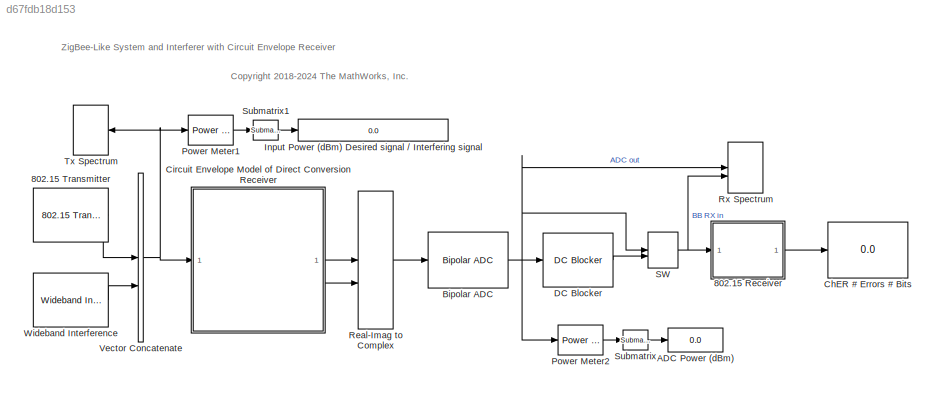
MODEL slx_d67fdb18d153
KIND model
CONFIG AbsTol = auto
CONFIG EnableMultiTasking = on
CONFIG FixedStep = auto
CONFIG MaxStep = auto
CONFIG MinStep = auto
CONFIG PreLoadFcn = % Baseband parameters\nbitRate = 250e3;\nspf = 4;  % samples per frame\nbps = 4;  % bits per ZigBee symbol\nsps = 16;  % samples per OQPSK symbol\ncps = 32;  % chips per ZigBee symbol\nchipRate = bitRate * cps / bps;\n\n% RF parameters\ncarrierFreqs = [2.45 2.5]*1e9;  % Hz\nharmonicOrder = [1 3];\noversampling = 4;  % reduce RF simulation step size to simulate interferer
CONFIG RelTol = 1e-3
CONFIG SampleTimeConstraint = Unconstrained
CONFIG SolverName = VariableStepAuto
CONFIG StartTime = 0.0
CONFIG StopTime = inf
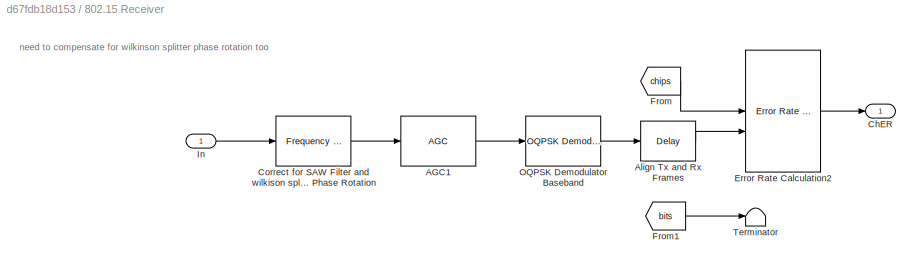
BLOCK [SubSystem] 802.15 Receiver
  NameLocation = top
BLOCK [Reference] 802.15 Receiver/AGC1  REF=commrfcorlib/AGC
  SourceBlock = commrfcorlib/AGC
  SourceType = AGC
BLOCK [Delay] 802.15 Receiver/Align Tx and Rx Frames
  DelayLength = cps - 1 - 1  % chips/sym - tx filter delay - rx filter delay
  InputPortMap = u0
  InputProcessing = Columns as channels (frame based)
BLOCK [Outport] 802.15 Receiver/ChER
  VectorParamsAs1DForOutWhenUnconnected = off
BLOCK [Reference] 802.15 Receiver/Correct for SAW Filter and wilkison splitter Phase Rotation  REF=commrflib2/Phase//
Frequency
Offset
  SourceBlock = commrflib2/Phase//\nFrequency\nOffset
  SourceType = Phase/Frequency Offset
BLOCK [Reference] 802.15 Receiver/Error Rate Calculation2  REF=commsink2/Error Rate
Calculation
  SourceBlock = commsink2/Error Rate\nCalculation
  SourceType = Error Rate Calculation
BLOCK [From] 802.15 Receiver/From
  GotoTag = chips
  TagVisibility = global
BLOCK [From] 802.15 Receiver/From1
  GotoTag = bits
  TagVisibility = global
BLOCK [Inport] 802.15 Receiver/In
BLOCK [Reference] 802.15 Receiver/OQPSK Demodulator Baseband  REF=commdigbbndpm3/OQPSK
Demodulator
Baseband
  SourceBlock = commdigbbndpm3/OQPSK\nDemodulator\nBaseband
  SourceType = OQPSK Demodulator Baseband
  UserDataPersistent = on
BLOCK [Terminator] 802.15 Receiver/Terminator
BLOCK [Reference] 802.15 Transmitter  REF=TopDownRFReceiverDesignLib/802.15
Transmitter
  SourceBlock = TopDownRFReceiverDesignLib/802.15\nTransmitter
BLOCK [Display] ADC Power (dBm)
  Decimation = 1
BLOCK [Reference] Bipolar ADC  REF=TopDownRFReceiverDesignLib/Bipolar ADC
  LibrarySourceBlock = commdemoslib/Bipolar ADC
  SourceBlock = TopDownRFReceiverDesignLib/Bipolar ADC
  SourceType = Analog-to-Digital Converter
BLOCK [Display] ChER # Errors # Bits
  Decimation = 1
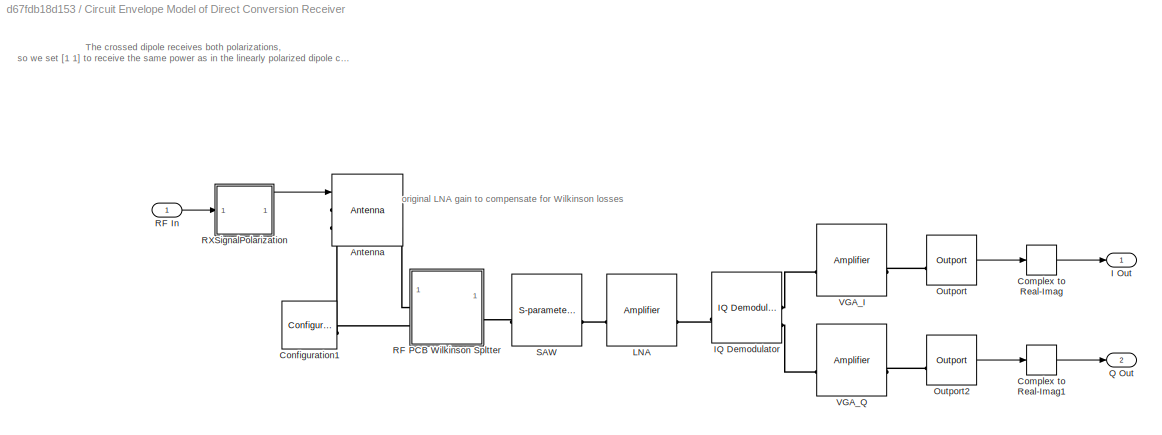
BLOCK [SubSystem] Circuit Envelope Model of Direct Conversion Receiver
BLOCK [Reference] Circuit Envelope Model of Direct Conversion Receiver/Antenna  REF=simrfV2elements/Antenna
  SourceBlock = simrfV2elements/Antenna
  SourceType = Antenna
  UserDataPersistent = on
BLOCK [ComplexToRealImag] Circuit Envelope Model of Direct Conversion Receiver/Complex to Real-Imag
  Output = Real
BLOCK [ComplexToRealImag] Circuit Envelope Model of Direct Conversion Receiver/Complex to Real-Imag1
  Output = Real
BLOCK [Reference] Circuit Envelope Model of Direct Conversion Receiver/Configuration1  REF=simrfV2util1/Configuration
  SourceBlock = simrfV2util1/Configuration
  SourceType = Configuration
BLOCK [Outport] Circuit Envelope Model of Direct Conversion Receiver/I Out
  NameLocation = top
  VectorParamsAs1DForOutWhenUnconnected = off
BLOCK [Reference] Circuit Envelope Model of Direct Conversion Receiver/IQ Demodulator   REF=simrfV2systems/IQ Demodulator
  SourceBlock = simrfV2systems/IQ Demodulator
  SourceType = IQ Demodulator
BLOCK [Reference] Circuit Envelope Model of Direct Conversion Receiver/LNA  REF=simrfV2elements/Amplifier
  SourceBlock = simrfV2elements/Amplifier
  SourceType = Amplifier
BLOCK [Reference] Circuit Envelope Model of Direct Conversion Receiver/Outport  REF=simrfV2util1/Outport
  SourceBlock = simrfV2util1/Outport
  SourceType = Outport
BLOCK [Reference] Circuit Envelope Model of Direct Conversion Receiver/Outport2  REF=simrfV2util1/Outport
  SourceBlock = simrfV2util1/Outport
  SourceType = Outport
BLOCK [Outport] Circuit Envelope Model of Direct Conversion Receiver/Q Out
  NameLocation = top
  Port = 2
  VectorParamsAs1DForOutWhenUnconnected = off
BLOCK [Inport] Circuit Envelope Model of Direct Conversion Receiver/RF In
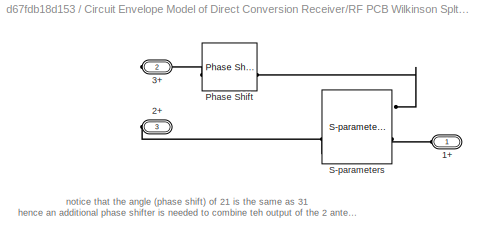
BLOCK [SubSystem] Circuit Envelope Model of Direct Conversion Receiver/RF PCB Wilkinson Spltter
BLOCK [PMIOPort] Circuit Envelope Model of Direct Conversion Receiver/RF PCB Wilkinson Spltter/1+
  Side = Left
BLOCK [PMIOPort] Circuit Envelope Model of Direct Conversion Receiver/RF PCB Wilkinson Spltter/2+
  Port = 3
  Side = Right
BLOCK [PMIOPort] Circuit Envelope Model of Direct Conversion Receiver/RF PCB Wilkinson Spltter/3+
  Port = 2
  Side = Right
BLOCK [Reference] Circuit Envelope Model of Direct Conversion Receiver/RF PCB Wilkinson Spltter/Phase Shift  REF=simrfV2elements/Phase Shift
  SourceBlock = simrfV2elements/Phase Shift
  SourceType = Phase Shift
BLOCK [Reference] Circuit Envelope Model of Direct Conversion Receiver/RF PCB Wilkinson Spltter/S-parameters  REF=simrfV2elements/S-parameters
  NameLocation = top
  SourceBlock = simrfV2elements/S-parameters
  SourceType = S-parameters
  UserDataPersistent = on
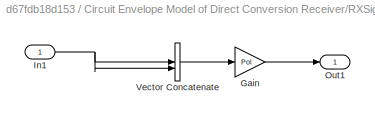
BLOCK [SubSystem] Circuit Envelope Model of Direct Conversion Receiver/RXSignalPolarization
BLOCK [Gain] Circuit Envelope Model of Direct Conversion Receiver/RXSignalPolarization/Gain
  Gain = Pol
BLOCK [Inport] Circuit Envelope Model of Direct Conversion Receiver/RXSignalPolarization/In1
BLOCK [Outport] Circuit Envelope Model of Direct Conversion Receiver/RXSignalPolarization/Out1
BLOCK [Concatenate] Circuit Envelope Model of Direct Conversion Receiver/RXSignalPolarization/Vector Concatenate
  ConcatenateDimension = 3
  Mode = Multidimensional array
  NameLocation = left
BLOCK [Reference] Circuit Envelope Model of Direct Conversion Receiver/SAW  REF=simrfV2elements/S-parameters
  SourceBlock = simrfV2elements/S-parameters
  SourceType = S-parameters
  UserDataPersistent = on
BLOCK [Reference] Circuit Envelope Model of Direct Conversion Receiver/VGA_I  REF=simrfV2elements/Amplifier
  SourceBlock = simrfV2elements/Amplifier
  SourceType = Amplifier
BLOCK [Reference] Circuit Envelope Model of Direct Conversion Receiver/VGA_Q  REF=simrfV2elements/Amplifier
  SourceBlock = simrfV2elements/Amplifier
  SourceType = Amplifier
BLOCK [Reference] DC Blocker  REF=dspsigops/DC Blocker
  SourceBlock = dspsigops/DC Blocker
  SourceType = dsp.simulink.DCBlocker
BLOCK [Display] Input Power (dBm) Desired signal // Interfering signal
  Decimation = 1
BLOCK [Reference] Power Meter1  REF=dspstat3/Power Meter
  LibrarySourceBlock = commutil2/Power Meter
  SourceBlock = dspstat3/Power Meter
  SourceType = dsp.simulink.PowerMeter
BLOCK [Reference] Power Meter2  REF=dspstat3/Power Meter
  LibrarySourceBlock = commutil2/Power Meter
  SourceBlock = dspstat3/Power Meter
  SourceType = dsp.simulink.PowerMeter
BLOCK [RealImagToComplex] Real-Imag to Complex
BLOCK [SpectrumAnalyzer] Rx Spectrum
  AllowFFTLengthLessThanSamplesPerUpdate = on
  AveragingMethod = Running
  AxesScaling = Manual
  FFTLength = 128
  FrequencyResolutionMethod = Window length
  GraphicalSettings = {"GraphicalSettings":{"Style":{"BackgroundColor":[0.12941176470588237,0.12941176470588237,0.12941176470588237],"AxesColor":[0,0,0],"LabelsColor":[0.6862745098039216,0.6862745098039216,0.6862745098039216],"PreserveColors":false,"Visible":[true,true],"LineStyle":["-","-"],"LineColor":[[1,1,0.06666666666666667],[0.07450980392156863,0.6235294117647059,1]],"LineWidth":[1,1],"Marker":["none","none"],"Fo...<+951ch>
  Method = Welch
  NameLocation = top
  NumInputPorts = 2
  RBW = 46921.92192
  RBWSource = Property
  SampleRate = 16000000
  ScopeFrameLocation = window
  ScopeSpecificationString = spbscopes.SpectrumAnalyzerBlockCfg('CurrentConfiguration', extmgr.ConfigurationSet(extmgr.Configuration('Core','General UI',true,'DisplayFullSourceName',true,'FigureColor',[0.156862745098039 0.156862745098039 0.156862745098039]),extmgr.Configuration('Core','Source UI',true),extmgr.Configuration('Sources','WiredSimulink',true),extmgr.Configuration('Sources','File',false),extmgr.Configuration('Sourc...<+4095ch>
  SegLen = 1024
  ShowLegend = on
  Span = 32000000
  SpectralAverages = 16
  StartFrequency = -16000000
  StopFrequency = 16000000
  WasSavedAsWebScope = on
  WindowPosition = [540.000000,122.000000,475.000000,318.000000,]
  YLabel = Power
  YLimits = [-75.64216798,-32.23249525]
BLOCK [ManualSwitch] SW
  CurrentSetting = 0
BLOCK [Reference] Submatrix  REF=matrix_library/Submatrix
  LibrarySourceBlock = simulink/Matrix\nOperations/Submatrix
  SourceBlock = matrix_library/Submatrix
  SourceType = Submatrix
BLOCK [Reference] Submatrix1  REF=matrix_library/Submatrix
  LibrarySourceBlock = simulink/Matrix\nOperations/Submatrix
  SourceBlock = matrix_library/Submatrix
  SourceType = Submatrix
BLOCK [SpectrumAnalyzer] Tx Spectrum
  AllowFFTLengthLessThanSamplesPerUpdate = on
  AveragingMethod = Running
  CenterFrequency = 2450000000
  FFTLength = 128
  FrequencyOffset = [2.45 2.5]*1e9
  FrequencyResolutionMethod = Window length
  GraphicalSettings = {"GraphicalSettings":{"Style":{"BackgroundColor":[0.12941176470588237,0.12941176470588237,0.12941176470588237],"AxesColor":[0,0,0],"LabelsColor":[0.6862745098039216,0.6862745098039216,0.6862745098039216],"PreserveColors":false,"Visible":[true,true],"LineStyle":["-","-"],"LineColor":[[1,1,0.06666666666666667],[0.07450980392156863,0.6235294117647059,1]],"LineWidth":[1,1],"Marker":["none","none"],"Fo...<+966ch>
  Method = Welch
  NameLocation = top
  RBW = 46921.92192
  RBWSource = Property
  SampleRate = 16000000
  ScopeFrameLocation = window
  ScopeSpecificationString = spbscopes.SpectrumAnalyzerBlockCfg('CurrentConfiguration', extmgr.ConfigurationSet(extmgr.Configuration('Core','General UI',true,'DisplayFullSourceName',true,'FigureColor',[0.156862745098039 0.156862745098039 0.156862745098039]),extmgr.Configuration('Core','Source UI',true),extmgr.Configuration('Sources','WiredSimulink',true),extmgr.Configuration('Sources','File',false),extmgr.Configuration('Sourc...<+3394ch>
  SegLen = 1024
  ShowLegend = on
  Span = 32000000
  SpectralAverages = 10
  StartFrequency = 2434000000
  StopFrequency = 2466000000
  WasSavedAsWebScope = on
  WindowPosition = [61.000000,124.000000,476.000000,318.000000,]
  YLabel = Power
  YLimits = [-211.9303413,-31.49754161]
BLOCK [Concatenate] Vector Concatenate
  ConcatenateDimension = 2
  Mode = Multidimensional array
BLOCK [Reference] Wideband Interference  REF=TopDownRFReceiverDesignLib/Wideband
Interference
  SourceBlock = TopDownRFReceiverDesignLib/Wideband\nInterference
ANNOTATION (root): ZigBee-Like System and Interferer with Circuit Envelope Receiver
ANNOTATION (root): <copyright redacted>
ANNOTATION 802.15 Receiver: need to compensate for wilkinson splitter phase rotation too
ANNOTATION Circuit Envelope Model of Direct Conversion Receiver: The crossed dipole receives both polarizations, so we set [1 1] to receive the same power as in the linearly polarized dipole case
ANNOTATION Circuit Envelope Model of Direct Conversion Receiver: original LNA gain to compensate for Wilkinson losses
ANNOTATION Circuit Envelope Model of Direct Conversion Receiver/RF PCB Wilkinson Spltter: notice that the angle (phase shift) of 21 is the same as 31 hence an additional phase shifter is needed to combine teh output of the 2 antennas
LINE 802.15 Receiver/AGC1:1 -> 802.15 Receiver/OQPSK Demodulator Baseband:1
LINE 802.15 Receiver/Align Tx and Rx Frames:1 -> 802.15 Receiver/Error Rate Calculation2:2
LINE 802.15 Receiver/Correct for SAW Filter and wilkison splitter Phase Rotation:1 -> 802.15 Receiver/AGC1:1
LINE 802.15 Receiver/Error Rate Calculation2:1 -> 802.15 Receiver/ChER:1
LINE 802.15 Receiver/From1:1 -> 802.15 Receiver/Terminator:1
LINE 802.15 Receiver/From:1 -> 802.15 Receiver/Error Rate Calculation2:1
LINE 802.15 Receiver/In:1 -> 802.15 Receiver/Correct for SAW Filter and wilkison splitter Phase Rotation:1
LINE 802.15 Receiver/OQPSK Demodulator Baseband:1 -> 802.15 Receiver/Align Tx and Rx Frames:1
LINE 802.15 Receiver:1 -> ChER # Errors # Bits:1
LINE 802.15 Transmitter:1 -> Vector Concatenate:1
NET Bipolar ADC:1 -> DC Blocker:1, Power Meter2:1, Rx Spectrum:1, SW:1
LINE Circuit Envelope Model of Direct Conversion Receiver/Complex to Real-Imag1:1 -> Circuit Envelope Model of Direct Conversion Receiver/Q Out:1
LINE Circuit Envelope Model of Direct Conversion Receiver/Complex to Real-Imag:1 -> Circuit Envelope Model of Direct Conversion Receiver/I Out:1
LINE Circuit Envelope Model of Direct Conversion Receiver/Outport2:1 -> Circuit Envelope Model of Direct Conversion Receiver/Complex to Real-Imag1:1
LINE Circuit Envelope Model of Direct Conversion Receiver/Outport:1 -> Circuit Envelope Model of Direct Conversion Receiver/Complex to Real-Imag:1
LINE Circuit Envelope Model of Direct Conversion Receiver/RF In:1 -> Circuit Envelope Model of Direct Conversion Receiver/RXSignalPolarization:1
LINE Circuit Envelope Model of Direct Conversion Receiver/RXSignalPolarization/Gain:1 -> Circuit Envelope Model of Direct Conversion Receiver/RXSignalPolarization/Out1:1
NET Circuit Envelope Model of Direct Conversion Receiver/RXSignalPolarization/In1:1 -> Circuit Envelope Model of Direct Conversion Receiver/RXSignalPolarization/Vector Concatenate:1, Circuit Envelope Model of Direct Conversion Receiver/RXSignalPolarization/Vector Concatenate:2
LINE Circuit Envelope Model of Direct Conversion Receiver/RXSignalPolarization/Vector Concatenate:1 -> Circuit Envelope Model of Direct Conversion Receiver/RXSignalPolarization/Gain:1
LINE Circuit Envelope Model of Direct Conversion Receiver/RXSignalPolarization:1 -> Circuit Envelope Model of Direct Conversion Receiver/Antenna:1
LINE Circuit Envelope Model of Direct Conversion Receiver:1 -> Real-Imag to Complex:1
LINE Circuit Envelope Model of Direct Conversion Receiver:2 -> Real-Imag to Complex:2
LINE DC Blocker:1 -> SW:2
LINE Power Meter1:1 -> Submatrix1:1
LINE Power Meter2:1 -> Submatrix:1
LINE Real-Imag to Complex:1 -> Bipolar ADC:1
NET SW:1 -> 802.15 Receiver:1, Rx Spectrum:2
LINE Submatrix1:1 -> Input Power (dBm) Desired signal // Interfering signal:1
LINE Submatrix:1 -> ADC Power (dBm):1
NET Vector Concatenate:1 -> Circuit Envelope Model of Direct Conversion Receiver:1, Power Meter1:1, Tx Spectrum:1
LINE Wideband Interference:1 -> Vector Concatenate:2
PNET net1: Circuit Envelope Model of Direct Conversion Receiver/Antenna:LConn1 -- Circuit Envelope Model of Direct Conversion Receiver/Configuration1:LConn1 -- Circuit Envelope Model of Direct Conversion Receiver/RF PCB Wilkinson Spltter:RConn2
PLINE Circuit Envelope Model of Direct Conversion Receiver/Antenna:LConn2 -- Circuit Envelope Model of Direct Conversion Receiver/RF PCB Wilkinson Spltter:RConn1
PLINE Circuit Envelope Model of Direct Conversion Receiver/IQ Demodulator :LConn1 -- Circuit Envelope Model of Direct Conversion Receiver/LNA:RConn1
PLINE Circuit Envelope Model of Direct Conversion Receiver/IQ Demodulator :RConn1 -- Circuit Envelope Model of Direct Conversion Receiver/VGA_I:LConn1
PLINE Circuit Envelope Model of Direct Conversion Receiver/IQ Demodulator :RConn2 -- Circuit Envelope Model of Direct Conversion Receiver/VGA_Q:LConn1
PLINE Circuit Envelope Model of Direct Conversion Receiver/LNA:LConn1 -- Circuit Envelope Model of Direct Conversion Receiver/SAW:RConn1
PLINE Circuit Envelope Model of Direct Conversion Receiver/Outport2:LConn1 -- Circuit Envelope Model of Direct Conversion Receiver/VGA_Q:RConn1
PLINE Circuit Envelope Model of Direct Conversion Receiver/Outport:LConn1 -- Circuit Envelope Model of Direct Conversion Receiver/VGA_I:RConn1
PLINE Circuit Envelope Model of Direct Conversion Receiver/RF PCB Wilkinson Spltter/1+:RConn1 -- Circuit Envelope Model of Direct Conversion Receiver/RF PCB Wilkinson Spltter/S-parameters:LConn1
PLINE Circuit Envelope Model of Direct Conversion Receiver/RF PCB Wilkinson Spltter/2+:RConn1 -- Circuit Envelope Model of Direct Conversion Receiver/RF PCB Wilkinson Spltter/S-parameters:RConn1
PLINE Circuit Envelope Model of Direct Conversion Receiver/RF PCB Wilkinson Spltter/3+:RConn1 -- Circuit Envelope Model of Direct Conversion Receiver/RF PCB Wilkinson Spltter/Phase Shift:LConn1
PLINE Circuit Envelope Model of Direct Conversion Receiver/RF PCB Wilkinson Spltter:LConn1 -- Circuit Envelope Model of Direct Conversion Receiver/SAW:LConn1
note: NET lines group one-source signal fan-out (src -> all destinations, sorted); 1:1 wires keep LINE; PNET lines group multi-terminal physical nets as a canonical sorted terminal list (undirected conserving connections); 2-terminal nets keep the pairwise PLINE form
